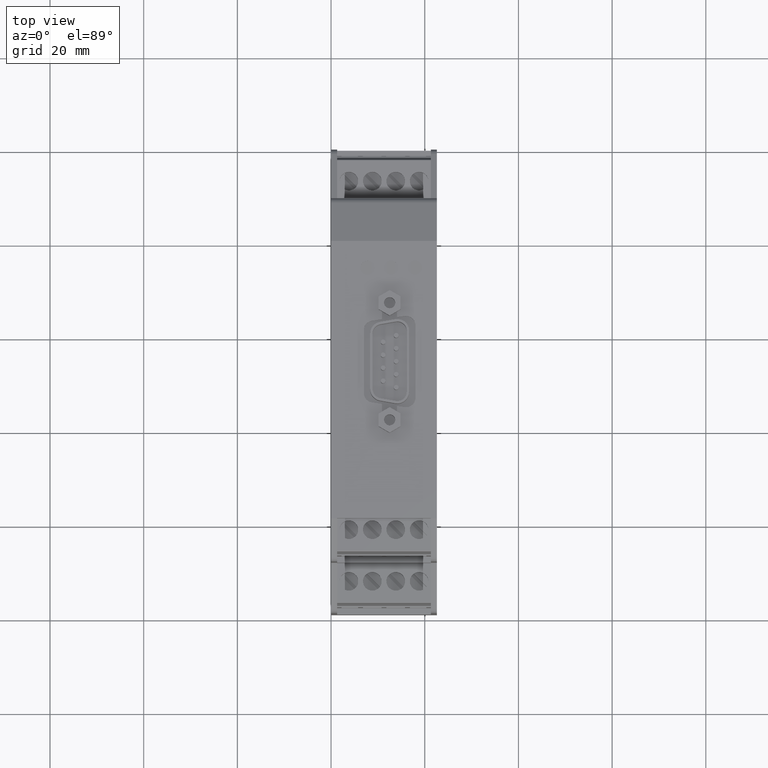
[diagram: clean part render]
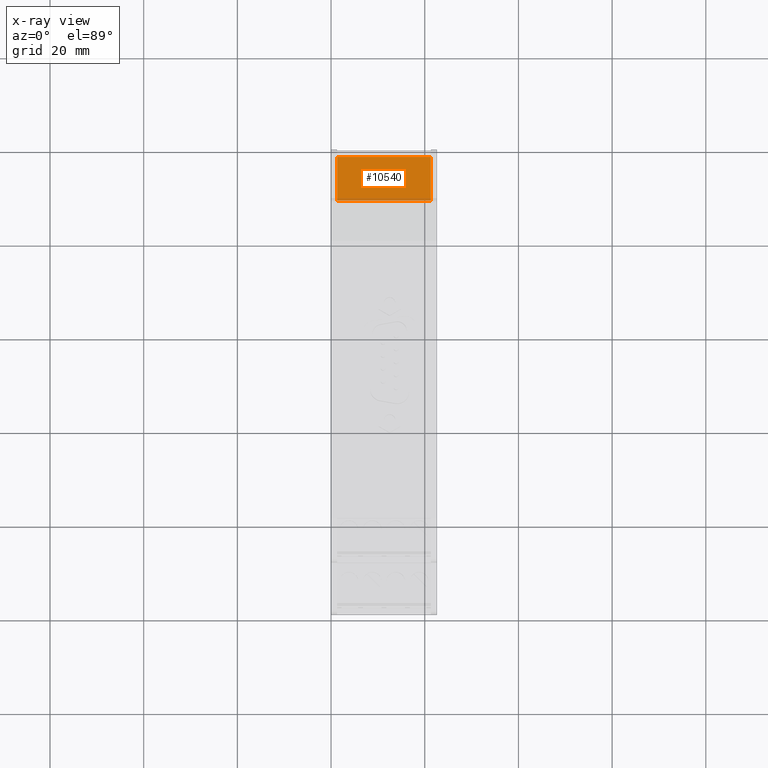
[diagram: x-ray — body ghosted, one internal face saturated and labeled with its STEP entity id]
A machine part, top view, then the same camera in x-ray: the body is ghosted and one INTERNAL B-rep face — a face not visible from any outside direction — is saturated and labeled: STEP entity #10540.
In plain terms, the highlighted planar face has unit normal (0, -0, -1).
Its self-contained STEP definition (entity closure, byte-faithful):
#4370=CARTESIAN_POINT('',(-1.39022475768771E-11,70.1499919592727,
1.30000000000028));
#4380=DIRECTION('',(-1.,0.,-1.22460635382238E-16));
#4390=VECTOR('',#4380,1.);
#4400=LINE('',#4370,#4390);
#4410=CARTESIAN_POINT('',(48.1499981249996,70.1499919592727,
1.30000000000029));
#4420=VERTEX_POINT('',#4410);
#4430=CARTESIAN_POINT('',(38.7999999999999,70.1499919592727,
1.30000000000028));
#4440=VERTEX_POINT('',#4430);
#4450=EDGE_CURVE('',#4420,#4440,#4400,.T.);
#7090=CARTESIAN_POINT('',(38.7999999999999,70.1499919592727,
21.2987820000001));
#7100=VERTEX_POINT('',#7090);
#7130=CARTESIAN_POINT('',(38.7999999999999,70.1499919592727,26.4));
#7140=DIRECTION('',(0.,0.,-1.));
#7150=VECTOR('',#7140,1.);
#7160=LINE('',#7130,#7150);
#7170=EDGE_CURVE('',#7100,#4440,#7160,.T.);
#10160=CARTESIAN_POINT('',(48.1499981249996,70.1499919592727,
21.2987820000001));
#10170=VERTEX_POINT('',#10160);
#10200=CARTESIAN_POINT('',(-10.3766731157322,70.1499919592727,
21.2987820000001));
#10210=DIRECTION('',(-1.,0.,0.));
#10220=VECTOR('',#10210,1.);
#10230=LINE('',#10200,#10220);
#10240=EDGE_CURVE('',#10170,#7100,#10230,.T.);
#10380=CARTESIAN_POINT('',(29.9499981249998,70.1499919592727,
21.2987820000001));
#10390=DIRECTION('',(-0.,-1.,-0.));
#10400=DIRECTION('',(-1.,0.,0.));
#10410=AXIS2_PLACEMENT_3D('',#10380,#10390,#10400);
#10420=PLANE('',#10410);
#10430=ORIENTED_EDGE('',*,*,#10240,.T.);
#10440=CARTESIAN_POINT('',(48.1499981249996,70.1499919592727,
18.7987820000001));
#10450=DIRECTION('',(0.,0.,-1.));
#10460=VECTOR('',#10450,1.);
#10470=LINE('',#10440,#10460);
#10480=EDGE_CURVE('',#10170,#4420,#10470,.T.);
#10490=ORIENTED_EDGE('',*,*,#10480,.F.);
#10500=ORIENTED_EDGE('',*,*,#4450,.F.);
#10510=ORIENTED_EDGE('',*,*,#7170,.T.);
#10520=EDGE_LOOP('',(#10510,#10500,#10490,#10430));
#10530=FACE_OUTER_BOUND('',#10520,.T.);
#10540=ADVANCED_FACE('',(#10530),#10420,.T.);